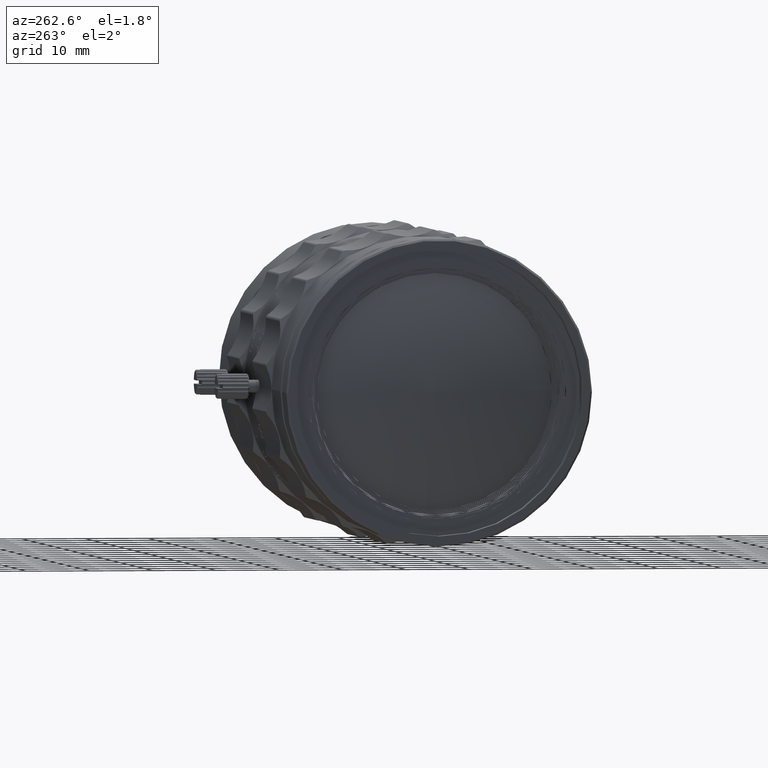
[diagram: clean part render]
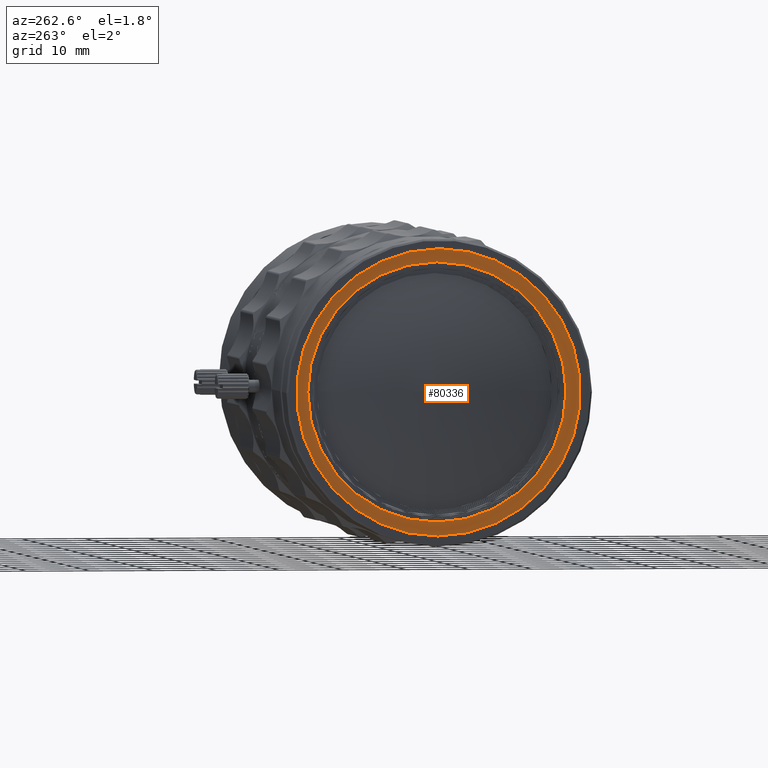
[diagram: same view with one face highlighted and labeled with its STEP entity id]
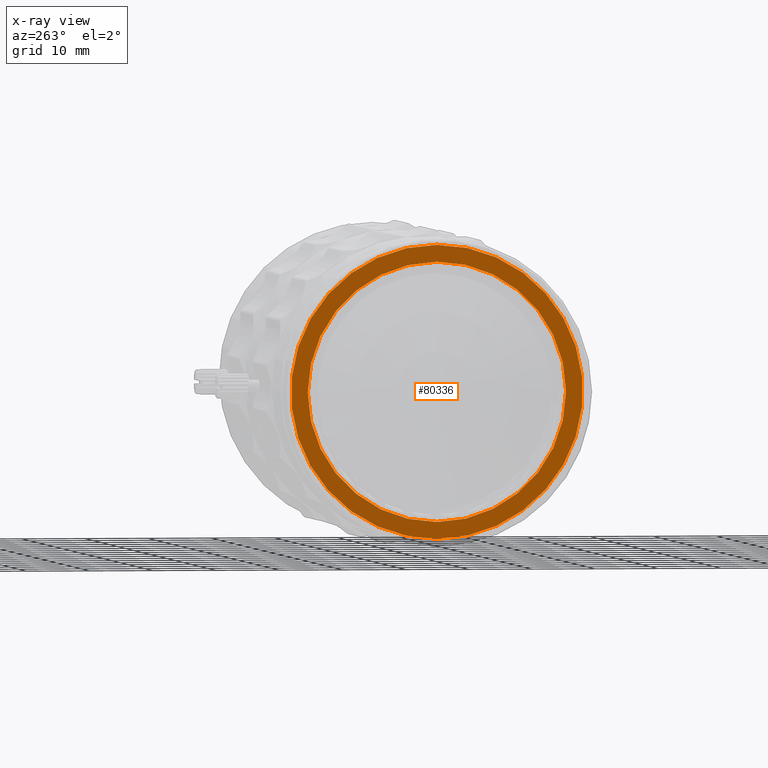
[diagram: x-ray of the same camera — body ghosted, the highlighted face saturated]
A machine part, auxiliary view. The second image highlights one B-rep face of the part: STEP entity #80336.
The next image is the same camera in x-ray: the body ghosted, the highlighted face saturated — about 0% of this face is hidden behind the body in this view.
In plain terms, the highlighted planar face has unit normal (1, 0, 0).
Its self-contained STEP definition (entity closure, byte-faithful):
#561 = CARTESIAN_POINT ( 'NONE',  ( -1.250000000000000000, 0.000000000000000000, 0.000000000000000000 ) ) ;
#5142 = CARTESIAN_POINT ( 'NONE',  ( -1.250000000000000000, 0.000000000000000000, 23.09999999999999787 ) ) ;
#7153 = AXIS2_PLACEMENT_3D ( 'NONE', #66039, #73528, #12927 ) ;
#8950 = DIRECTION ( 'NONE',  ( 0.000000000000000000, 0.000000000000000000, 1.000000000000000000 ) ) ;
#9267 = CARTESIAN_POINT ( 'NONE',  ( -1.250000000000000000, 4.243401159045574619E-15, -23.09999999999999787 ) ) ;
#10251 = DIRECTION ( 'NONE',  ( 1.000000000000000000, 0.000000000000000000, 0.000000000000000000 ) ) ;
#11313 = DIRECTION ( 'NONE',  ( 0.000000000000000000, 1.000000000000000000, 0.000000000000000000 ) ) ;
#11695 = ORIENTED_EDGE ( 'NONE', *, *, #81283, .F. ) ;
#12927 = DIRECTION ( 'NONE',  ( 0.000000000000000000, -1.000000000000000000, 0.000000000000000000 ) ) ;
#14238 = EDGE_CURVE ( 'NONE', #85822, #42294, #48178, .T. ) ;
#14372 = AXIS2_PLACEMENT_3D ( 'NONE', #51790, #71694, #18159 ) ;
#16163 = ORIENTED_EDGE ( 'NONE', *, *, #33132, .F. ) ;
#16838 = VERTEX_POINT ( 'NONE', #5142 ) ;
#18159 = DIRECTION ( 'NONE',  ( 0.000000000000000000, 0.000000000000000000, 1.000000000000000000 ) ) ;
#24583 = DIRECTION ( 'NONE',  ( 1.000000000000000000, 0.000000000000000000, 0.000000000000000000 ) ) ;
#27138 = DIRECTION ( 'NONE',  ( -1.000000000000000000, 0.000000000000000000, 0.000000000000000000 ) ) ;
#33132 = EDGE_CURVE ( 'NONE', #60225, #16838, #52501, .T. ) ;
#35700 = EDGE_LOOP ( 'NONE', ( #54671, #16163 ) ) ;
#39055 = AXIS2_PLACEMENT_3D ( 'NONE', #69551, #10251, #8950 ) ;
#42294 = VERTEX_POINT ( 'NONE', #69120 ) ;
#44558 = ORIENTED_EDGE ( 'NONE', *, *, #14238, .F. ) ;
#48178 = CIRCLE ( 'NONE', #7153, 20.44999999999999929 ) ;
#51790 = CARTESIAN_POINT ( 'NONE',  ( -1.250000000000000000, 0.000000000000000000, 0.000000000000000000 ) ) ;
#52501 = CIRCLE ( 'NONE', #14372, 23.09999999999999787 ) ;
#54671 = ORIENTED_EDGE ( 'NONE', *, *, #62904, .F. ) ;
#58217 = FACE_BOUND ( 'NONE', #84508, .T. ) ;
#58684 = AXIS2_PLACEMENT_3D ( 'NONE', #561, #27138, #76240 ) ;
#59092 = PLANE ( 'NONE',  #67153 ) ;
#60225 = VERTEX_POINT ( 'NONE', #9267 ) ;
#62904 = EDGE_CURVE ( 'NONE', #16838, #60225, #67360, .T. ) ;
#66039 = CARTESIAN_POINT ( 'NONE',  ( -1.250000000000000000, 0.000000000000000000, 0.000000000000000000 ) ) ;
#67153 = AXIS2_PLACEMENT_3D ( 'NONE', #85641, #24583, #11313 ) ;
#67360 = CIRCLE ( 'NONE', #39055, 23.09999999999999787 ) ;
#69120 = CARTESIAN_POINT ( 'NONE',  ( -1.250000000000000000, 2.504402704256334647E-15, -20.44999999999999929 ) ) ;
#69551 = CARTESIAN_POINT ( 'NONE',  ( -1.250000000000000000, 0.000000000000000000, 0.000000000000000000 ) ) ;
#71694 = DIRECTION ( 'NONE',  ( 1.000000000000000000, 0.000000000000000000, 0.000000000000000000 ) ) ;
#73528 = DIRECTION ( 'NONE',  ( -1.000000000000000000, 0.000000000000000000, 0.000000000000000000 ) ) ;
#76240 = DIRECTION ( 'NONE',  ( 0.000000000000000000, -1.000000000000000000, 0.000000000000000000 ) ) ;
#79061 = CARTESIAN_POINT ( 'NONE',  ( -1.250000000000000000, 0.000000000000000000, 20.44999999999999929 ) ) ;
#80336 = ADVANCED_FACE ( 'NONE', ( #58217, #85189 ), #59092, .F. ) ;
#81283 = EDGE_CURVE ( 'NONE', #42294, #85822, #85580, .T. ) ;
#84508 = EDGE_LOOP ( 'NONE', ( #44558, #11695 ) ) ;
#85189 = FACE_OUTER_BOUND ( 'NONE', #35700, .T. ) ;
#85580 = CIRCLE ( 'NONE', #58684, 20.44999999999999929 ) ;
#85641 = CARTESIAN_POINT ( 'NONE',  ( -1.250000000000000000, 24.02398711714999990, 24.02400000000000091 ) ) ;
#85822 = VERTEX_POINT ( 'NONE', #79061 ) ;